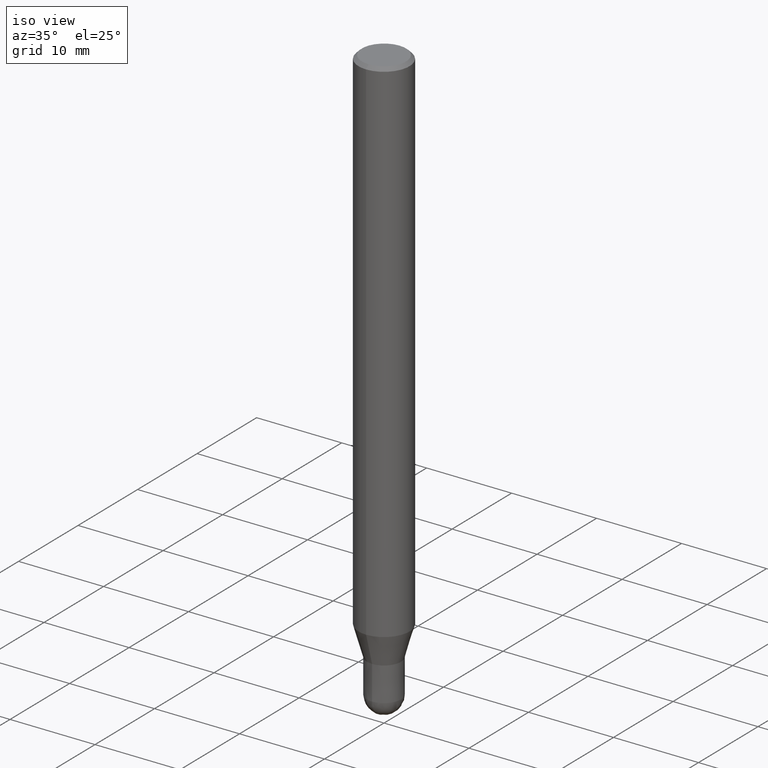
[diagram: clean part render]
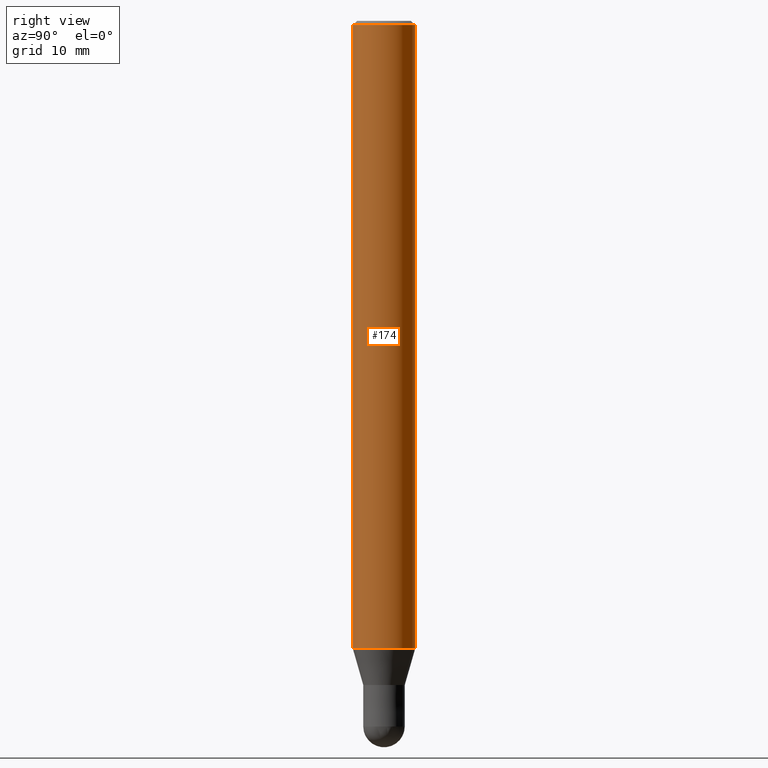
[diagram: tour spotlight — one face highlighted and labeled with its STEP entity id]
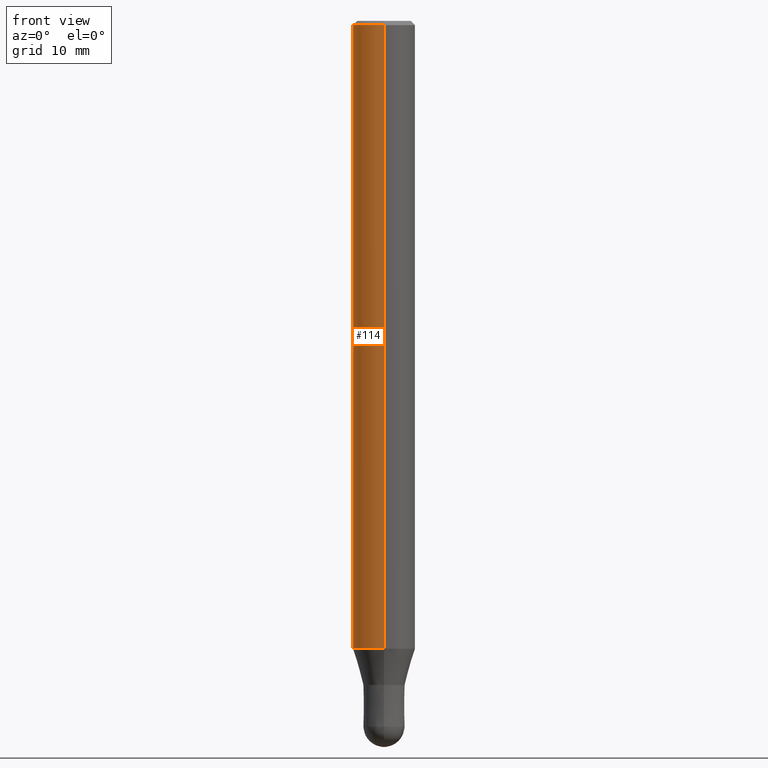
[diagram: tour spotlight — one face highlighted and labeled with its STEP entity id]
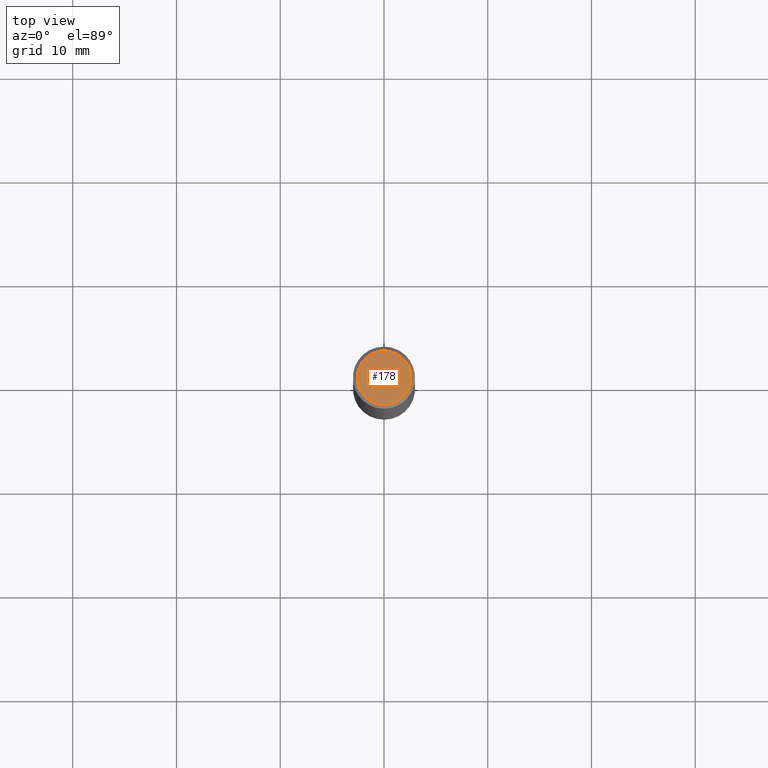
[diagram: tour spotlight — one face highlighted and labeled with its STEP entity id]
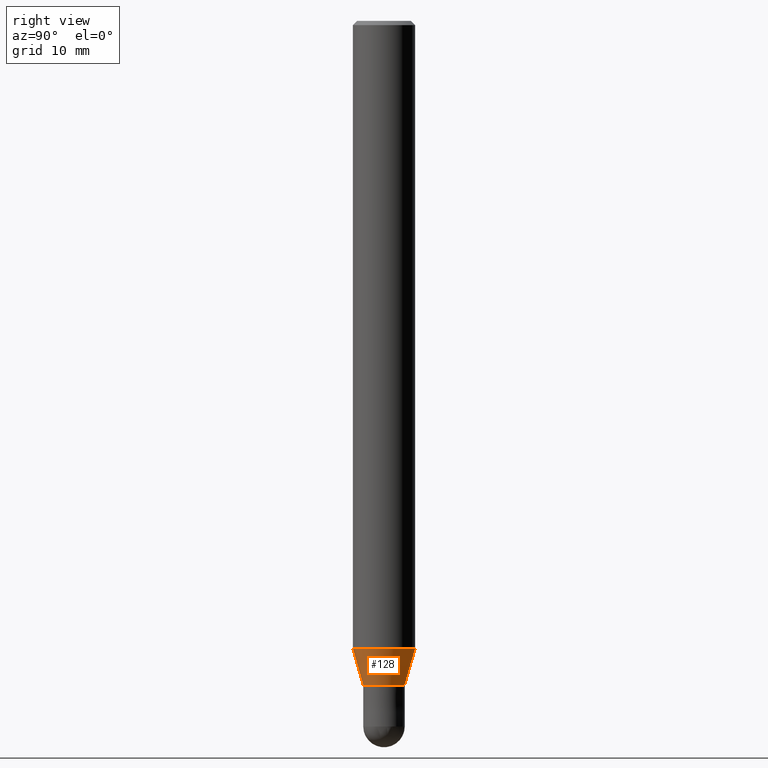
[diagram: tour spotlight — one face highlighted and labeled with its STEP entity id]
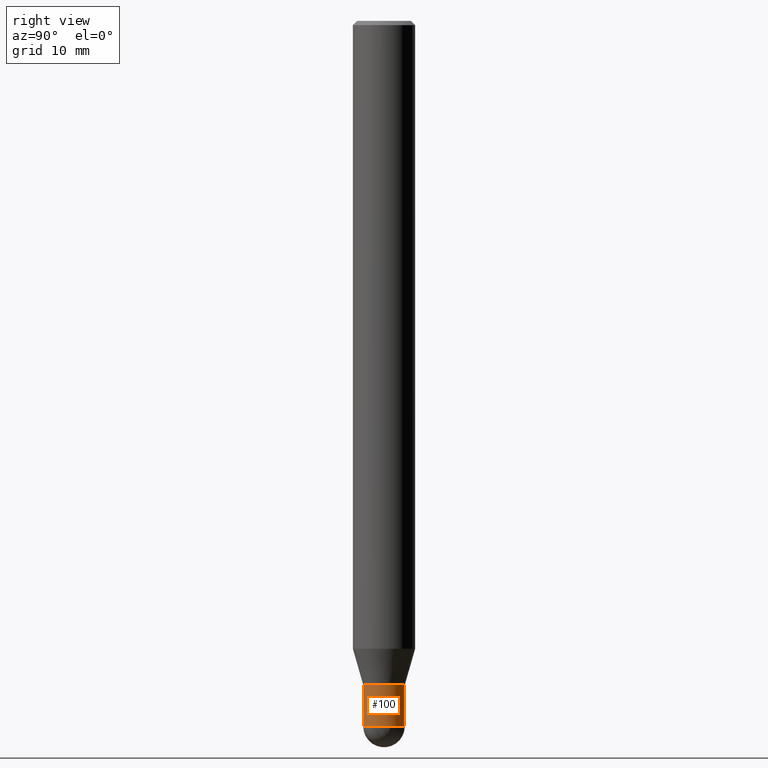
[diagram: tour spotlight — one face highlighted and labeled with its STEP entity id]
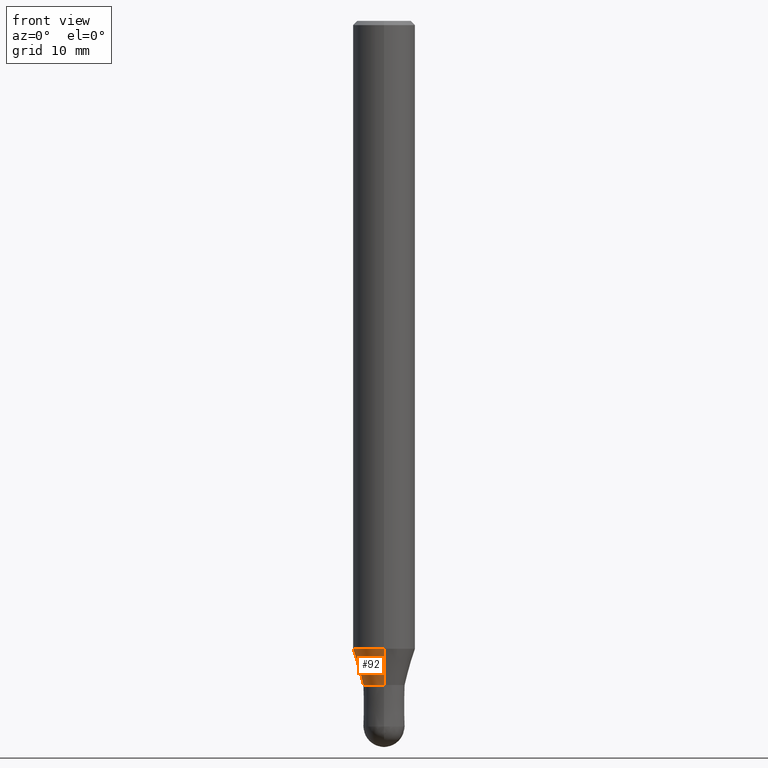
[diagram: tour spotlight — one face highlighted and labeled with its STEP entity id]
A machine part: a face-by-face anatomy tour. The part has 14 B-rep faces; the first image is the clean iso view, then the 6 largest visible faces are spotlighted one at a time (largest first), each with its STEP entity span.

Face 1 — right view, entity #174. In plain terms, the highlighted cylindrical surface (edge-blend (fillet) strip) has radius 3 mm, axis along (-0, -0, 1).
Definition (entity closure, byte-faithful):
#98=EDGE_CURVE('',#118,#130,#226,.T.);
#102=VERTEX_POINT('',#231);
#106=EDGE_CURVE('',#166,#118,#236,.T.);
#118=VERTEX_POINT('',#250);
#124=EDGE_CURVE('',#102,#130,#256,.T.);
#130=VERTEX_POINT('',#263);
#134=EDGE_CURVE('',#102,#166,#267,.T.);
#166=VERTEX_POINT('',#304);
#174=ADVANCED_FACE('',(#312),#313,.T.);
#226=LINE('',#358,#359);
#231=CARTESIAN_POINT('',(0.0,3.0,-0.399999999999999));
#236=CIRCLE('',#370,3.0);
#250=CARTESIAN_POINT('',(3.67381906146713E-016,-3.0,-60.513));
#256=CIRCLE('',#394,3.0);
#263=CARTESIAN_POINT('',(3.67381906146713E-016,-3.0,-0.399999999999999));
#267=LINE('',#409,#410);
#304=CARTESIAN_POINT('',(0.0,3.0,-60.513));
#312=FACE_OUTER_BOUND('',#466,.T.);
#313=CYLINDRICAL_SURFACE('',#467,3.0);
#358=CARTESIAN_POINT('',(3.67381906146713E-016,-3.0,-30.4565));
#359=VECTOR('',#516,1.0);
#370=AXIS2_PLACEMENT_3D('',#531,#532,#533);
#394=AXIS2_PLACEMENT_3D('',#559,#560,#561);
#409=CARTESIAN_POINT('',(-3.67381906146713E-016,3.0,-30.4565));
#410=VECTOR('',#574,1.0);
#466=EDGE_LOOP('',(#626,#627,#628,#629));
#467=AXIS2_PLACEMENT_3D('',#630,#631,#632);
#516=DIRECTION('',(-0.0,-0.0,1.0));
#531=CARTESIAN_POINT('',(0.0,0.0,-60.513));
#532=DIRECTION('',(0.0,0.0,-1.0));
#533=DIRECTION('',(0.0,1.0,0.0));
#559=CARTESIAN_POINT('',(0.0,0.0,-0.399999999999999));
#560=DIRECTION('',(0.0,0.0,-1.0));
#561=DIRECTION('',(0.0,1.0,0.0));
#574=DIRECTION('',(0.0,0.0,-1.0));
#626=ORIENTED_EDGE('',*,*,#134,.F.);
#627=ORIENTED_EDGE('',*,*,#124,.T.);
#628=ORIENTED_EDGE('',*,*,#98,.F.);
#629=ORIENTED_EDGE('',*,*,#106,.F.);
#630=CARTESIAN_POINT('',(0.0,0.0,-30.4565));
#631=DIRECTION('',(-0.0,-0.0,1.0));
#632=DIRECTION('',(0.0,1.0,0.0));

Face 2 — front view, entity #114. In plain terms, the highlighted cylindrical surface (edge-blend (fillet) strip) has radius 3 mm, axis along (-0, -0, 1).
Definition (entity closure, byte-faithful):
#98=EDGE_CURVE('',#118,#130,#226,.T.);
#102=VERTEX_POINT('',#231);
#114=ADVANCED_FACE('',(#245),#246,.T.);
#118=VERTEX_POINT('',#250);
#130=VERTEX_POINT('',#263);
#132=EDGE_CURVE('',#118,#166,#265,.T.);
#134=EDGE_CURVE('',#102,#166,#267,.T.);
#166=VERTEX_POINT('',#304);
#182=EDGE_CURVE('',#130,#102,#322,.T.);
#226=LINE('',#358,#359);
#231=CARTESIAN_POINT('',(0.0,3.0,-0.399999999999999));
#245=FACE_OUTER_BOUND('',#379,.T.);
#246=CYLINDRICAL_SURFACE('',#380,3.0);
#250=CARTESIAN_POINT('',(3.67381906146713E-016,-3.0,-60.513));
#263=CARTESIAN_POINT('',(3.67381906146713E-016,-3.0,-0.399999999999999));
#265=CIRCLE('',#406,3.0);
#267=LINE('',#409,#410);
#304=CARTESIAN_POINT('',(0.0,3.0,-60.513));
#322=CIRCLE('',#480,3.0);
#358=CARTESIAN_POINT('',(3.67381906146713E-016,-3.0,-30.4565));
#359=VECTOR('',#516,1.0);
#379=EDGE_LOOP('',(#543,#544,#545,#546));
#380=AXIS2_PLACEMENT_3D('',#547,#548,#549);
#406=AXIS2_PLACEMENT_3D('',#571,#572,#573);
#409=CARTESIAN_POINT('',(-3.67381906146713E-016,3.0,-30.4565));
#410=VECTOR('',#574,1.0);
#480=AXIS2_PLACEMENT_3D('',#643,#644,#645);
#516=DIRECTION('',(-0.0,-0.0,1.0));
#543=ORIENTED_EDGE('',*,*,#134,.T.);
#544=ORIENTED_EDGE('',*,*,#132,.F.);
#545=ORIENTED_EDGE('',*,*,#98,.T.);
#546=ORIENTED_EDGE('',*,*,#182,.T.);
#547=CARTESIAN_POINT('',(0.0,0.0,-30.4565));
#548=DIRECTION('',(-0.0,-0.0,1.0));
#549=DIRECTION('',(0.0,1.0,0.0));
#571=CARTESIAN_POINT('',(0.0,0.0,-60.513));
#572=DIRECTION('',(0.0,0.0,-1.0));
#573=DIRECTION('',(0.0,1.0,0.0));
#574=DIRECTION('',(0.0,0.0,-1.0));
#643=CARTESIAN_POINT('',(0.0,0.0,-0.399999999999999));
#644=DIRECTION('',(0.0,0.0,-1.0));
#645=DIRECTION('',(0.0,1.0,0.0));

Face 3 — top view, entity #178. In plain terms, the highlighted planar face has unit normal (-0, 0, 1).
Definition (entity closure, byte-faithful):
#110=VERTEX_POINT('',#241);
#112=VERTEX_POINT('',#243);
#138=EDGE_CURVE('',#112,#110,#272,.T.);
#162=EDGE_CURVE('',#110,#112,#300,.T.);
#178=ADVANCED_FACE('',(#317),#318,.T.);
#241=CARTESIAN_POINT('',(0.0,2.6,0.0));
#243=CARTESIAN_POINT('',(3.18397651993818E-016,-2.6,0.0));
#272=CIRCLE('',#416,2.6);
#300=CIRCLE('',#450,2.6);
#317=FACE_OUTER_BOUND('',#473,.T.);
#318=PLANE('',#474);
#416=AXIS2_PLACEMENT_3D('',#581,#582,#583);
#450=AXIS2_PLACEMENT_3D('',#615,#616,#617);
#473=EDGE_LOOP('',(#635,#636));
#474=AXIS2_PLACEMENT_3D('',#637,#638,#639);
#581=CARTESIAN_POINT('',(0.0,0.0,0.0));
#582=DIRECTION('',(0.0,0.0,-1.0));
#583=DIRECTION('',(0.0,1.0,0.0));
#615=CARTESIAN_POINT('',(0.0,0.0,0.0));
#616=DIRECTION('',(0.0,0.0,-1.0));
#617=DIRECTION('',(0.0,1.0,0.0));
#635=ORIENTED_EDGE('',*,*,#162,.F.);
#636=ORIENTED_EDGE('',*,*,#138,.F.);
#637=CARTESIAN_POINT('',(0.0,1.3,0.0));
#638=DIRECTION('',(-0.0,0.0,1.0));
#639=DIRECTION('',(0.0,-1.0,0.0));

Face 4 — right view, entity #128. In plain terms, the highlighted conical surface has half-angle 16.002 deg.
Definition (entity closure, byte-faithful):
#88=VERTEX_POINT('',#214);
#116=EDGE_CURVE('',#88,#160,#248,.T.);
#126=EDGE_CURVE('',#172,#160,#258,.T.);
#128=ADVANCED_FACE('',(#260),#261,.T.);
#156=VERTEX_POINT('',#294);
#160=VERTEX_POINT('',#298);
#168=EDGE_CURVE('',#88,#156,#306,.T.);
#172=VERTEX_POINT('',#310);
#190=EDGE_CURVE('',#156,#172,#330,.T.);
#214=CARTESIAN_POINT('',(0.0,2.99995,-60.513));
#248=CIRCLE('',#383,2.99995);
#258=LINE('',#397,#398);
#260=FACE_OUTER_BOUND('',#400,.T.);
#261=CONICAL_SURFACE('',#401,2.49995,0.279284171542493);
#294=CARTESIAN_POINT('',(0.0,1.99995,-64.0));
#298=CARTESIAN_POINT('',(3.67375783114944E-016,-2.99995,-60.513));
#306=LINE('',#458,#459);
#310=CARTESIAN_POINT('',(2.44915147732706E-016,-1.99995,-64.0));
#330=CIRCLE('',#491,1.99995);
#383=AXIS2_PLACEMENT_3D('',#550,#551,#552);
#397=CARTESIAN_POINT('',(3.06145465423825E-016,-2.49995,-62.2565));
#398=VECTOR('',#562,1.0);
#400=EDGE_LOOP('',(#564,#565,#566,#567));
#401=AXIS2_PLACEMENT_3D('',#568,#569,#570);
#458=CARTESIAN_POINT('',(-3.06145465423825E-016,2.49995,-62.2565));
#459=VECTOR('',#621,1.0);
#491=AXIS2_PLACEMENT_3D('',#647,#648,#649);
#550=CARTESIAN_POINT('',(0.0,0.0,-60.513));
#551=DIRECTION('',(0.0,0.0,-1.0));
#552=DIRECTION('',(0.0,1.0,0.0));
#562=DIRECTION('',(3.3758432755158E-017,-0.275667626987133,0.961253015304131));
#564=ORIENTED_EDGE('',*,*,#168,.F.);
#565=ORIENTED_EDGE('',*,*,#116,.T.);
#566=ORIENTED_EDGE('',*,*,#126,.F.);
#567=ORIENTED_EDGE('',*,*,#190,.F.);
#568=CARTESIAN_POINT('',(0.0,0.0,-62.2565));
#569=DIRECTION('',(-0.0,-0.0,1.0));
#570=DIRECTION('',(0.0,1.0,0.0));
#621=DIRECTION('',(3.3758432755158E-017,-0.275667626987133,-0.961253015304131));
#647=CARTESIAN_POINT('',(0.0,0.0,-64.0));
#648=DIRECTION('',(0.0,0.0,-1.0));
#649=DIRECTION('',(0.0,1.0,0.0));

Face 5 — right view, entity #100. In plain terms, the highlighted conical surface has half-angle 0.001 deg.
Definition (entity closure, byte-faithful):
#96=VERTEX_POINT('',#224);
#100=ADVANCED_FACE('',(#228),#229,.T.);
#144=VERTEX_POINT('',#280);
#146=EDGE_CURVE('',#144,#184,#282,.T.);
#150=EDGE_CURVE('',#188,#144,#287,.T.);
#154=EDGE_CURVE('',#184,#96,#292,.T.);
#180=EDGE_CURVE('',#188,#96,#320,.T.);
#184=VERTEX_POINT('',#324);
#188=VERTEX_POINT('',#328);
#224=CARTESIAN_POINT('',(2.44909024700937E-016,-1.9999,-64.0));
#228=FACE_OUTER_BOUND('',#361,.T.);
#229=CONICAL_SURFACE('',#362,1.99995,2.49999999947889E-005);
#280=CARTESIAN_POINT('',(0.0,2.0,-68.0));
#282=CIRCLE('',#428,2.0);
#287=LINE('',#434,#435);
#292=LINE('',#441,#442);
#320=CIRCLE('',#477,1.9999);
#324=CARTESIAN_POINT('',(2.44921270764475E-016,-2.0,-68.0));
#328=CARTESIAN_POINT('',(0.0,1.9999,-64.0));
#361=EDGE_LOOP('',(#518,#519,#520,#521));
#362=AXIS2_PLACEMENT_3D('',#522,#523,#524);
#428=AXIS2_PLACEMENT_3D('',#595,#596,#597);
#434=CARTESIAN_POINT('',(-2.44915147732706E-016,1.99995,-66.0));
#435=VECTOR('',#606,1.0);
#441=CARTESIAN_POINT('',(2.44915147732706E-016,-1.99995,-66.0));
#442=VECTOR('',#613,1.0);
#477=AXIS2_PLACEMENT_3D('',#640,#641,#642);
#518=ORIENTED_EDGE('',*,*,#150,.F.);
#519=ORIENTED_EDGE('',*,*,#180,.T.);
#520=ORIENTED_EDGE('',*,*,#154,.F.);
#521=ORIENTED_EDGE('',*,*,#146,.F.);
#522=CARTESIAN_POINT('',(0.0,0.0,-66.0));
#523=DIRECTION('',(0.0,-0.0,-1.0));
#524=DIRECTION('',(0.0,1.0,0.0));
#595=CARTESIAN_POINT('',(0.0,0.0,-68.0));
#596=DIRECTION('',(0.0,0.0,-1.0));
#597=DIRECTION('',(0.0,1.0,0.0));
#606=DIRECTION('',(-3.06151588359888E-021,2.49999999921848E-005,-0.9999999996875));
#613=DIRECTION('',(-3.06151588359888E-021,2.49999999921848E-005,0.9999999996875));
#640=CARTESIAN_POINT('',(0.0,0.0,-64.0));
#641=DIRECTION('',(0.0,0.0,-1.0));
#642=DIRECTION('',(0.0,1.0,0.0));

Face 6 — front view, entity #92. In plain terms, the highlighted conical surface has half-angle 16.002 deg.
Definition (entity closure, byte-faithful):
#88=VERTEX_POINT('',#214);
#92=ADVANCED_FACE('',(#219),#220,.T.);
#126=EDGE_CURVE('',#172,#160,#258,.T.);
#156=VERTEX_POINT('',#294);
#160=VERTEX_POINT('',#298);
#164=EDGE_CURVE('',#172,#156,#302,.T.);
#168=EDGE_CURVE('',#88,#156,#306,.T.);
#170=EDGE_CURVE('',#160,#88,#308,.T.);
#172=VERTEX_POINT('',#310);
#214=CARTESIAN_POINT('',(0.0,2.99995,-60.513));
#219=FACE_OUTER_BOUND('',#351,.T.);
#220=CONICAL_SURFACE('',#352,2.49995,0.279284171542493);
#258=LINE('',#397,#398);
#294=CARTESIAN_POINT('',(0.0,1.99995,-64.0));
#298=CARTESIAN_POINT('',(3.67375783114944E-016,-2.99995,-60.513));
#302=CIRCLE('',#453,1.99995);
#306=LINE('',#458,#459);
#308=CIRCLE('',#462,2.99995);
#310=CARTESIAN_POINT('',(2.44915147732706E-016,-1.99995,-64.0));
#351=EDGE_LOOP('',(#508,#509,#510,#511));
#352=AXIS2_PLACEMENT_3D('',#512,#513,#514);
#397=CARTESIAN_POINT('',(3.06145465423825E-016,-2.49995,-62.2565));
#398=VECTOR('',#562,1.0);
#453=AXIS2_PLACEMENT_3D('',#618,#619,#620);
#458=CARTESIAN_POINT('',(-3.06145465423825E-016,2.49995,-62.2565));
#459=VECTOR('',#621,1.0);
#462=AXIS2_PLACEMENT_3D('',#622,#623,#624);
#508=ORIENTED_EDGE('',*,*,#168,.T.);
#509=ORIENTED_EDGE('',*,*,#164,.F.);
#510=ORIENTED_EDGE('',*,*,#126,.T.);
#511=ORIENTED_EDGE('',*,*,#170,.T.);
#512=CARTESIAN_POINT('',(0.0,0.0,-62.2565));
#513=DIRECTION('',(-0.0,-0.0,1.0));
#514=DIRECTION('',(0.0,1.0,0.0));
#562=DIRECTION('',(3.3758432755158E-017,-0.275667626987133,0.961253015304131));
#618=CARTESIAN_POINT('',(0.0,0.0,-64.0));
#619=DIRECTION('',(0.0,0.0,-1.0));
#620=DIRECTION('',(0.0,1.0,0.0));
#621=DIRECTION('',(3.3758432755158E-017,-0.275667626987133,-0.961253015304131));
#622=CARTESIAN_POINT('',(0.0,0.0,-60.513));
#623=DIRECTION('',(0.0,0.0,-1.0));
#624=DIRECTION('',(0.0,1.0,0.0));